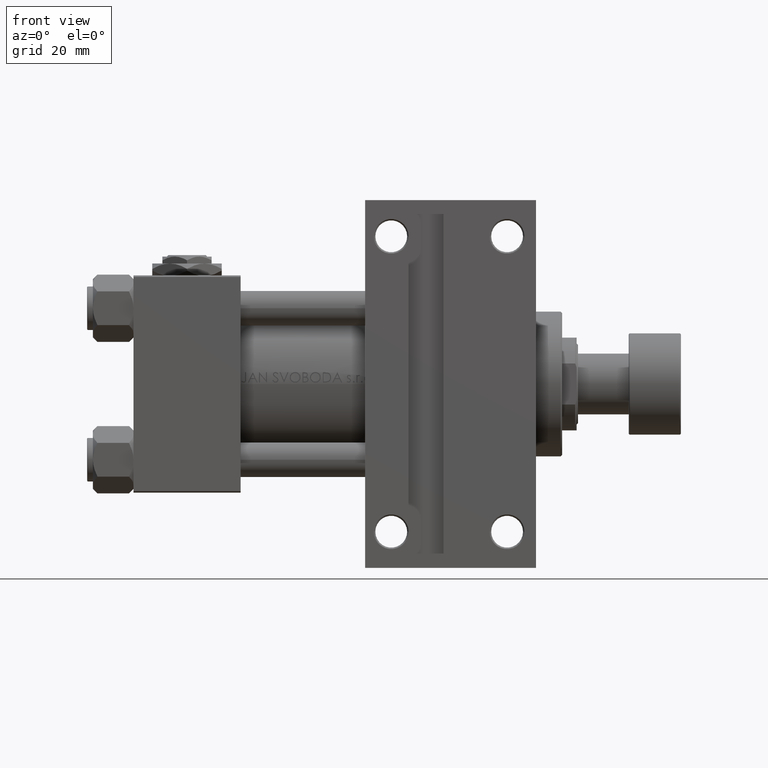
[diagram: clean part render]
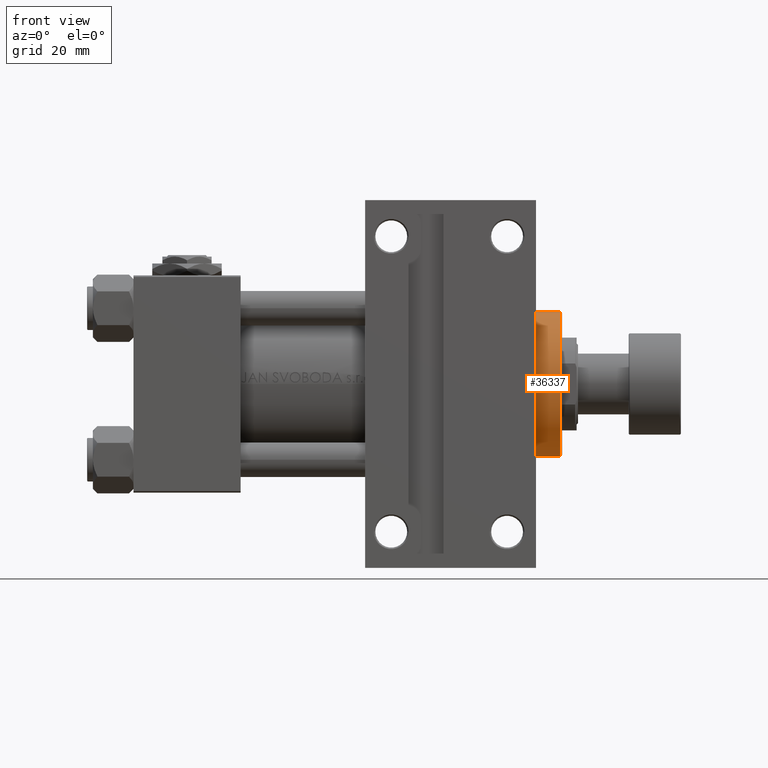
[diagram: same view with one face highlighted and labeled with its STEP entity id]
A machine part, front view. The second image highlights one B-rep face of the part: STEP entity #36337.
In plain terms, the highlighted cylindrical surface (partial cylindrical patch) has radius 25 mm, axis along (-1, 0, 0).
Its self-contained STEP definition (entity closure, byte-faithful):
#1445 = VERTEX_POINT ( 'NONE', #38624 ) ;
#2101 = CARTESIAN_POINT ( 'NONE',  ( -25.00000000000000000, 0.000000000000000000, 28.69999999999999929 ) ) ;
#2213 = AXIS2_PLACEMENT_3D ( 'NONE', #24588, #16842, #13097 ) ;
#3029 = DIRECTION ( 'NONE',  ( -0.000000000000000000, -0.000000000000000000, -1.000000000000000000 ) ) ;
#4282 = EDGE_LOOP ( 'NONE', ( #36946, #22674, #21371, #14548 ) ) ;
#5021 = CARTESIAN_POINT ( 'NONE',  ( 0.000000000000000000, 0.000000000000000000, 28.69999999999999929 ) ) ;
#7682 = CARTESIAN_POINT ( 'NONE',  ( 0.000000000000000000, 0.000000000000000000, 37.69999999999999574 ) ) ;
#7998 = CIRCLE ( 'NONE', #27930, 25.00000000000000000 ) ;
#9970 = VECTOR ( 'NONE', #3029, 1000.000000000000000 ) ;
#10682 = VERTEX_POINT ( 'NONE', #14408 ) ;
#11171 = FACE_OUTER_BOUND ( 'NONE', #4282, .T. ) ;
#11234 = CARTESIAN_POINT ( 'NONE',  ( 25.00000000000000000, 3.061616997868383043E-15, 37.69999999999999574 ) ) ;
#12211 = EDGE_CURVE ( 'NONE', #25753, #12269, #26919, .T. ) ;
#12269 = VERTEX_POINT ( 'NONE', #2101 ) ;
#13084 = DIRECTION ( 'NONE',  ( -0.000000000000000000, -0.000000000000000000, -1.000000000000000000 ) ) ;
#13097 = DIRECTION ( 'NONE',  ( 1.000000000000000000, 0.000000000000000000, 0.000000000000000000 ) ) ;
#14339 = EDGE_CURVE ( 'NONE', #25753, #1445, #40495, .T. ) ;
#14408 = CARTESIAN_POINT ( 'NONE',  ( 25.00000000000000000, 3.061616997868383043E-15, 28.69999999999999929 ) ) ;
#14433 = DIRECTION ( 'NONE',  ( -0.000000000000000000, -0.000000000000000000, -1.000000000000000000 ) ) ;
#14548 = ORIENTED_EDGE ( 'NONE', *, *, #12211, .F. ) ;
#16842 = DIRECTION ( 'NONE',  ( 0.000000000000000000, 0.000000000000000000, -1.000000000000000000 ) ) ;
#20233 = DIRECTION ( 'NONE',  ( 0.000000000000000000, 0.000000000000000000, 1.000000000000000000 ) ) ;
#20704 = EDGE_CURVE ( 'NONE', #10682, #12269, #7998, .T. ) ;
#21371 = ORIENTED_EDGE ( 'NONE', *, *, #20704, .T. ) ;
#22674 = ORIENTED_EDGE ( 'NONE', *, *, #36049, .T. ) ;
#22876 = VECTOR ( 'NONE', #13084, 1000.000000000000000 ) ;
#24588 = CARTESIAN_POINT ( 'NONE',  ( 0.000000000000000000, 0.000000000000000000, 37.20000000000001705 ) ) ;
#25753 = VERTEX_POINT ( 'NONE', #41347 ) ;
#26919 = LINE ( 'NONE', #34667, #22876 ) ;
#27930 = AXIS2_PLACEMENT_3D ( 'NONE', #5021, #20233, #31743 ) ;
#29745 = LINE ( 'NONE', #11234, #9970 ) ;
#30790 = AXIS2_PLACEMENT_3D ( 'NONE', #7682, #14433, #48385 ) ;
#31743 = DIRECTION ( 'NONE',  ( 1.000000000000000000, 0.000000000000000000, 0.000000000000000000 ) ) ;
#33191 = CYLINDRICAL_SURFACE ( 'NONE', #30790, 25.00000000000000000 ) ;
#34667 = CARTESIAN_POINT ( 'NONE',  ( -25.00000000000000000, 0.000000000000000000, 37.69999999999999574 ) ) ;
#36049 = EDGE_CURVE ( 'NONE', #1445, #10682, #29745, .T. ) ;
#36337 = ADVANCED_FACE ( 'NONE', ( #11171 ), #33191, .T. ) ;
#36946 = ORIENTED_EDGE ( 'NONE', *, *, #14339, .T. ) ;
#38624 = CARTESIAN_POINT ( 'NONE',  ( 25.00000000000000000, 3.061616997868383043E-15, 37.20000000000001705 ) ) ;
#40495 = CIRCLE ( 'NONE', #2213, 25.00000000000000000 ) ;
#41347 = CARTESIAN_POINT ( 'NONE',  ( -25.00000000000000000, 0.000000000000000000, 37.20000000000001705 ) ) ;
#48385 = DIRECTION ( 'NONE',  ( -1.000000000000000000, 0.000000000000000000, 0.000000000000000000 ) ) ;